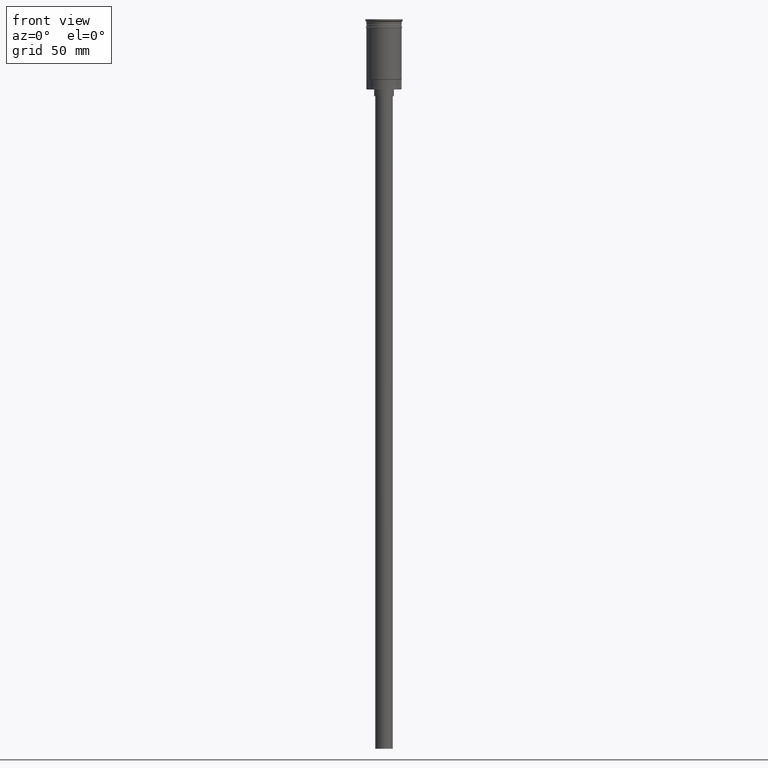
[diagram: clean part render]
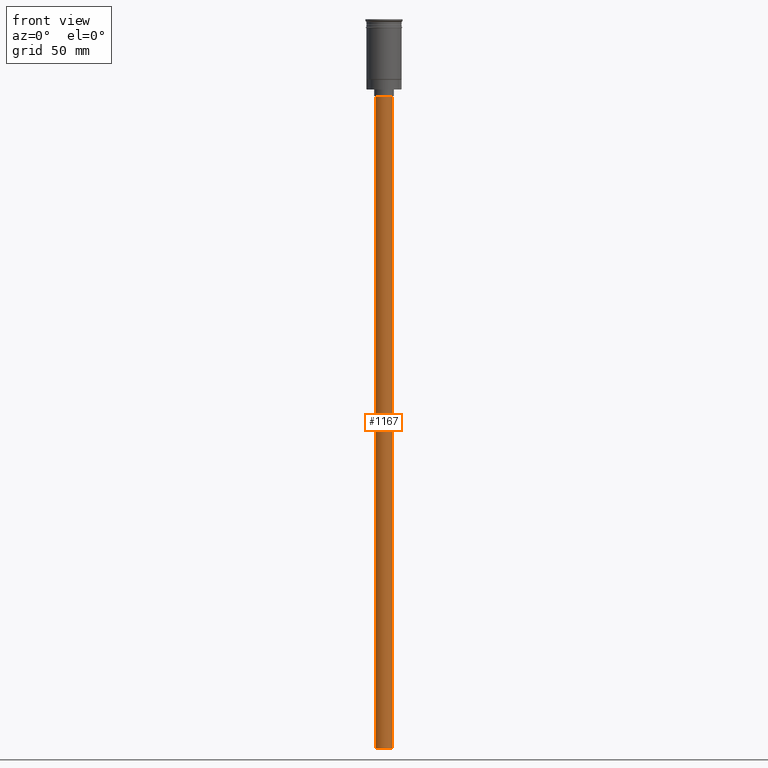
[diagram: same view with one face highlighted and labeled with its STEP entity id]
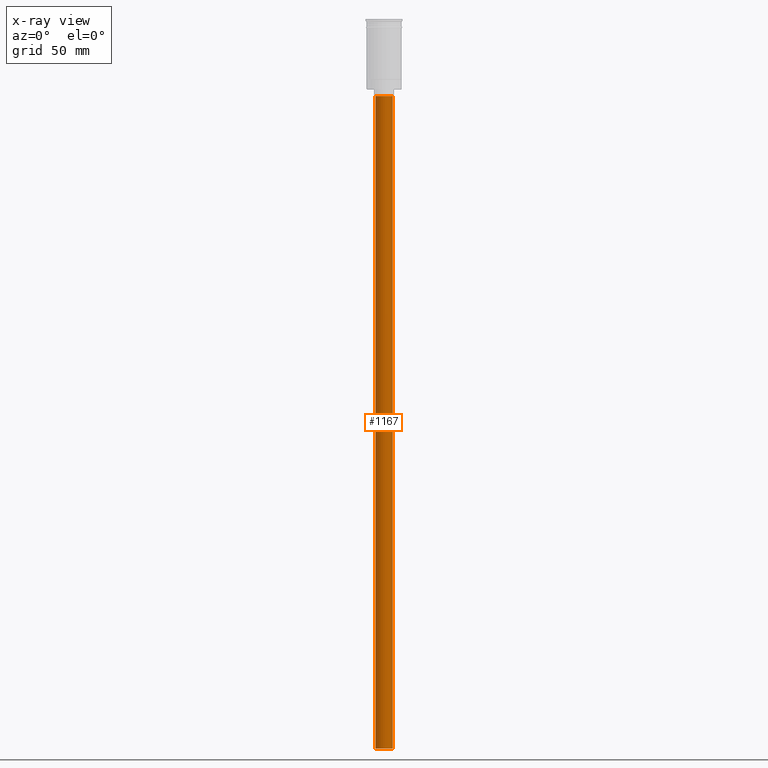
[diagram: x-ray of the same camera — body ghosted, the highlighted face saturated]
A machine part, front view. The second image highlights one B-rep face of the part: STEP entity #1167.
The next image is the same camera in x-ray: the body ghosted, the highlighted face saturated — about 0% of this face is hidden behind the body in this view.
In plain terms, the highlighted cylindrical surface (edge-blend (fillet) strip) has radius 4 mm, axis along (-0, -0, 1).
Its self-contained STEP definition (entity closure, byte-faithful):
#13 = ORIENTED_EDGE ( 'NONE', *, *, #1340, .T. ) ;
#17 = CARTESIAN_POINT ( 'NONE',  ( -4.000000000000000000, 4.898587196589412829E-16, -331.9999999999999432 ) ) ;
#81 = VECTOR ( 'NONE', #1246, 1000.000000000000000 ) ;
#89 = EDGE_CURVE ( 'NONE', #1381, #451, #231, .T. ) ;
#93 = ORIENTED_EDGE ( 'NONE', *, *, #1341, .T. ) ;
#105 = CARTESIAN_POINT ( 'NONE',  ( -4.000000000000000000, 4.898587196589412829E-16, -331.9999999999999432 ) ) ;
#159 = DIRECTION ( 'NONE',  ( -1.000000000000000000, 0.000000000000000000, 0.000000000000000000 ) ) ;
#168 = AXIS2_PLACEMENT_3D ( 'NONE', #1551, #425, #667 ) ;
#196 = AXIS2_PLACEMENT_3D ( 'NONE', #896, #277, #159 ) ;
#207 = DIRECTION ( 'NONE',  ( 0.000000000000000000, 0.000000000000000000, -1.000000000000000000 ) ) ;
#211 = EDGE_CURVE ( 'NONE', #1060, #1381, #758, .T. ) ;
#231 = LINE ( 'NONE', #105, #81 ) ;
#277 = DIRECTION ( 'NONE',  ( 0.000000000000000000, 0.000000000000000000, -1.000000000000000000 ) ) ;
#308 = CYLINDRICAL_SURFACE ( 'NONE', #168, 4.000000000000000000 ) ;
#425 = DIRECTION ( 'NONE',  ( -0.000000000000000000, -0.000000000000000000, 1.000000000000000000 ) ) ;
#434 = DIRECTION ( 'NONE',  ( -1.000000000000000000, 0.000000000000000000, 0.000000000000000000 ) ) ;
#451 = VERTEX_POINT ( 'NONE', #615 ) ;
#615 = CARTESIAN_POINT ( 'NONE',  ( -4.000000000000000000, 4.898587196589412829E-16, -35.00000000000000000 ) ) ;
#657 = DIRECTION ( 'NONE',  ( -0.000000000000000000, -0.000000000000000000, 1.000000000000000000 ) ) ;
#667 = DIRECTION ( 'NONE',  ( 1.000000000000000000, 0.000000000000000000, 0.000000000000000000 ) ) ;
#683 = AXIS2_PLACEMENT_3D ( 'NONE', #1407, #207, #434 ) ;
#758 = CIRCLE ( 'NONE', #683, 4.000000000000000000 ) ;
#861 = VECTOR ( 'NONE', #657, 1000.000000000000000 ) ;
#896 = CARTESIAN_POINT ( 'NONE',  ( 0.000000000000000000, 0.000000000000000000, -35.00000000000000000 ) ) ;
#926 = VERTEX_POINT ( 'NONE', #948 ) ;
#948 = CARTESIAN_POINT ( 'NONE',  ( 4.000000000000000000, 0.000000000000000000, -35.00000000000000000 ) ) ;
#1057 = FACE_OUTER_BOUND ( 'NONE', #1291, .T. ) ;
#1060 = VERTEX_POINT ( 'NONE', #1497 ) ;
#1112 = CARTESIAN_POINT ( 'NONE',  ( 4.000000000000000000, 0.000000000000000000, -331.9999999999999432 ) ) ;
#1131 = ORIENTED_EDGE ( 'NONE', *, *, #211, .F. ) ;
#1134 = LINE ( 'NONE', #1112, #861 ) ;
#1167 = ADVANCED_FACE ( 'NONE', ( #1057 ), #308, .T. ) ;
#1246 = DIRECTION ( 'NONE',  ( -0.000000000000000000, -0.000000000000000000, 1.000000000000000000 ) ) ;
#1291 = EDGE_LOOP ( 'NONE', ( #1399, #1131, #93, #13 ) ) ;
#1312 = CIRCLE ( 'NONE', #196, 4.000000000000000000 ) ;
#1340 = EDGE_CURVE ( 'NONE', #926, #451, #1312, .T. ) ;
#1341 = EDGE_CURVE ( 'NONE', #1060, #926, #1134, .T. ) ;
#1381 = VERTEX_POINT ( 'NONE', #17 ) ;
#1399 = ORIENTED_EDGE ( 'NONE', *, *, #89, .F. ) ;
#1407 = CARTESIAN_POINT ( 'NONE',  ( 0.000000000000000000, 0.000000000000000000, -331.9999999999999432 ) ) ;
#1497 = CARTESIAN_POINT ( 'NONE',  ( 4.000000000000000000, 0.000000000000000000, -331.9999999999999432 ) ) ;
#1551 = CARTESIAN_POINT ( 'NONE',  ( 0.000000000000000000, 0.000000000000000000, -331.9999999999999432 ) ) ;